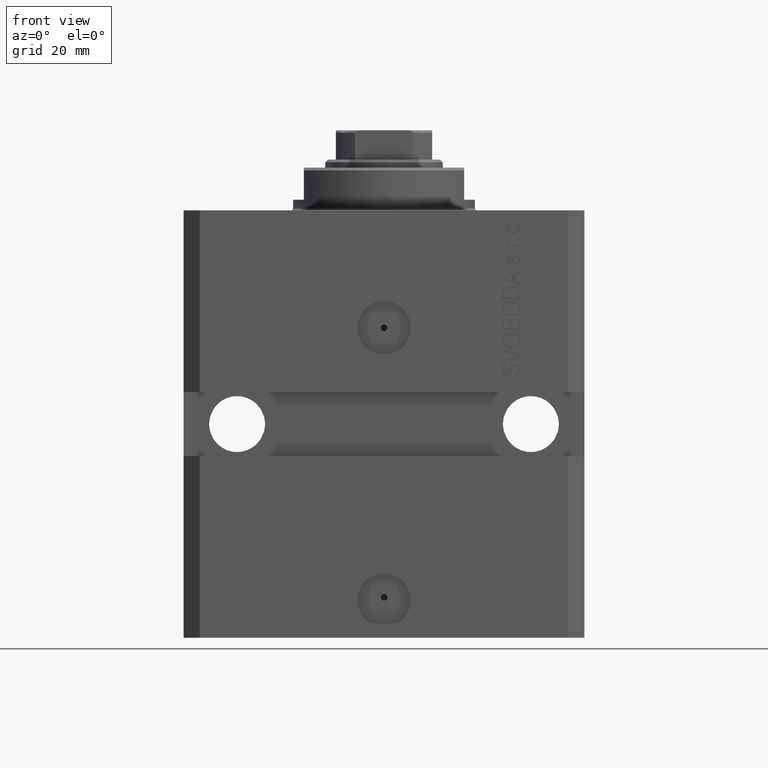
[diagram: clean part render]
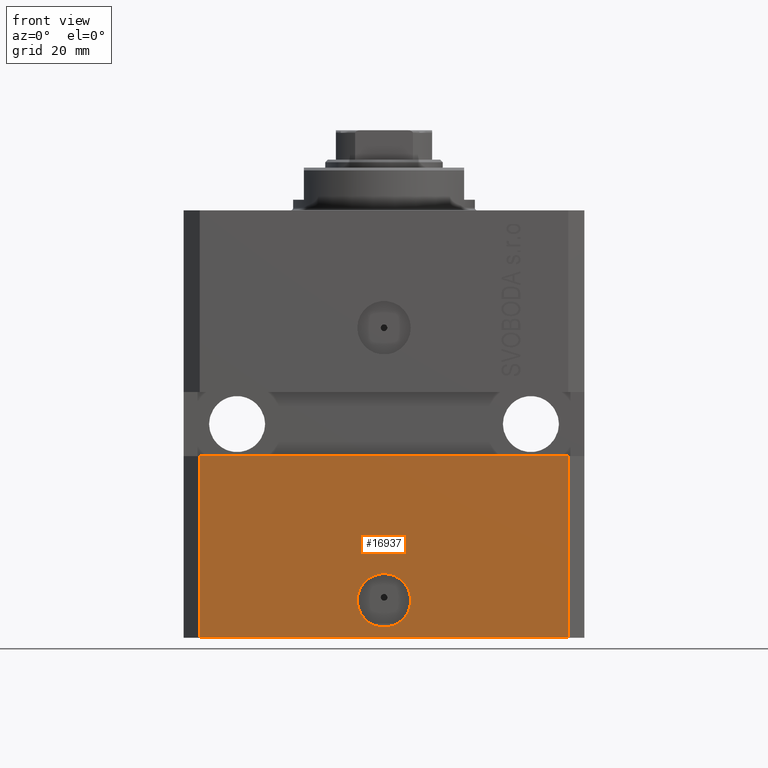
[diagram: same view with one face highlighted and labeled with its STEP entity id]
A machine part, front view. The second image highlights one B-rep face of the part: STEP entity #16937.
In plain terms, the highlighted planar face has unit normal (0, -1, 0).
Its self-contained STEP definition (entity closure, byte-faithful):
#79 = EDGE_LOOP ( 'NONE', ( #15912, #6974 ) ) ;
#1159 = EDGE_CURVE ( 'NONE', #17368, #6201, #27697, .T. ) ;
#4168 = FACE_BOUND ( 'NONE', #79, .T. ) ;
#4410 = LINE ( 'NONE', #14620, #7386 ) ;
#4620 = EDGE_CURVE ( 'NONE', #17368, #22999, #4410, .T. ) ;
#5554 = ORIENTED_EDGE ( 'NONE', *, *, #11652, .T. ) ;
#6201 = VERTEX_POINT ( 'NONE', #20678 ) ;
#6974 = ORIENTED_EDGE ( 'NONE', *, *, #9372, .F. ) ;
#7262 = CARTESIAN_POINT ( 'NONE',  ( 0.000000000000000000, -27.49999999999999645, -73.00000000000000000 ) ) ;
#7386 = VECTOR ( 'NONE', #7972, 1000.000000000000000 ) ;
#7695 = ORIENTED_EDGE ( 'NONE', *, *, #14025, .F. ) ;
#7972 = DIRECTION ( 'NONE',  ( 1.000000000000000000, 0.000000000000000000, 0.000000000000000000 ) ) ;
#8995 = LINE ( 'NONE', #23450, #39368 ) ;
#9372 = EDGE_CURVE ( 'NONE', #11654, #39069, #29505, .T. ) ;
#9801 = AXIS2_PLACEMENT_3D ( 'NONE', #42364, #16557, #35022 ) ;
#10390 = CARTESIAN_POINT ( 'NONE',  ( -34.49999999999998579, -27.49999999999999645, -80.00000000000000000 ) ) ;
#10570 = LINE ( 'NONE', #25030, #40053 ) ;
#11652 = EDGE_CURVE ( 'NONE', #22999, #30674, #10570, .T. ) ;
#11654 = VERTEX_POINT ( 'NONE', #14373 ) ;
#13054 = ORIENTED_EDGE ( 'NONE', *, *, #1159, .F. ) ;
#14025 = EDGE_CURVE ( 'NONE', #6201, #30674, #8995, .T. ) ;
#14194 = ORIENTED_EDGE ( 'NONE', *, *, #4620, .T. ) ;
#14373 = CARTESIAN_POINT ( 'NONE',  ( -5.000000000000006217, -27.49999999999999645, -73.00000000000000000 ) ) ;
#14620 = CARTESIAN_POINT ( 'NONE',  ( -34.49999999999998579, -27.49999999999999645, -80.00000000000000000 ) ) ;
#15321 = DIRECTION ( 'NONE',  ( 0.000000000000000000, -1.000000000000000000, 0.000000000000000000 ) ) ;
#15912 = ORIENTED_EDGE ( 'NONE', *, *, #39107, .F. ) ;
#16557 = DIRECTION ( 'NONE',  ( 1.176083712526788232E-16, -1.000000000000000000, 0.000000000000000000 ) ) ;
#16937 = ADVANCED_FACE ( 'NONE', ( #4168, #25981 ), #22184, .T. ) ;
#17285 = DIRECTION ( 'NONE',  ( 0.000000000000000000, 0.000000000000000000, 1.000000000000000000 ) ) ;
#17368 = VERTEX_POINT ( 'NONE', #37502 ) ;
#18611 = CARTESIAN_POINT ( 'NONE',  ( 34.49999999999999289, -27.49999999999999645, -80.00000000000000000 ) ) ;
#20678 = CARTESIAN_POINT ( 'NONE',  ( -34.49999999999998579, -27.50000000000000000, -46.00000000000000000 ) ) ;
#21802 = CARTESIAN_POINT ( 'NONE',  ( 34.49999999999999289, -27.49999999999999289, -46.00000000000000000 ) ) ;
#22184 = PLANE ( 'NONE',  #34151 ) ;
#22999 = VERTEX_POINT ( 'NONE', #18611 ) ;
#23450 = CARTESIAN_POINT ( 'NONE',  ( -37.50000000000000000, -27.50000000000000000, -46.00000000000000000 ) ) ;
#25030 = CARTESIAN_POINT ( 'NONE',  ( 34.49999999999999289, -27.49999999999999645, -80.00000000000000000 ) ) ;
#25038 = CARTESIAN_POINT ( 'NONE',  ( 5.000000000000006217, -27.49999999999999645, -73.00000000000000000 ) ) ;
#25981 = FACE_OUTER_BOUND ( 'NONE', #45095, .T. ) ;
#27466 = DIRECTION ( 'NONE',  ( 1.000000000000000000, 9.251858538542972814E-17, 0.000000000000000000 ) ) ;
#27697 = LINE ( 'NONE', #10390, #36029 ) ;
#27927 = CIRCLE ( 'NONE', #40795, 5.000000000000006217 ) ;
#29055 = DIRECTION ( 'NONE',  ( 1.176083712526788232E-16, -1.000000000000000000, 0.000000000000000000 ) ) ;
#29505 = CIRCLE ( 'NONE', #9801, 5.000000000000006217 ) ;
#30674 = VERTEX_POINT ( 'NONE', #21802 ) ;
#34151 = AXIS2_PLACEMENT_3D ( 'NONE', #43509, #15321, #44210 ) ;
#35022 = DIRECTION ( 'NONE',  ( 1.000000000000000000, 0.000000000000000000, 0.000000000000000000 ) ) ;
#36029 = VECTOR ( 'NONE', #17285, 1000.000000000000000 ) ;
#37502 = CARTESIAN_POINT ( 'NONE',  ( -34.49999999999998579, -27.49999999999999645, -80.00000000000000000 ) ) ;
#39069 = VERTEX_POINT ( 'NONE', #25038 ) ;
#39107 = EDGE_CURVE ( 'NONE', #39069, #11654, #27927, .T. ) ;
#39368 = VECTOR ( 'NONE', #27466, 1000.000000000000000 ) ;
#39478 = DIRECTION ( 'NONE',  ( 0.000000000000000000, 0.000000000000000000, 1.000000000000000000 ) ) ;
#40053 = VECTOR ( 'NONE', #39478, 1000.000000000000000 ) ;
#40795 = AXIS2_PLACEMENT_3D ( 'NONE', #7262, #29055, #46582 ) ;
#42364 = CARTESIAN_POINT ( 'NONE',  ( 0.000000000000000000, -27.49999999999999645, -73.00000000000000000 ) ) ;
#43509 = CARTESIAN_POINT ( 'NONE',  ( -34.49999999999998579, -27.49999999999999645, -80.00000000000000000 ) ) ;
#44210 = DIRECTION ( 'NONE',  ( 0.000000000000000000, -0.000000000000000000, -1.000000000000000000 ) ) ;
#45095 = EDGE_LOOP ( 'NONE', ( #7695, #13054, #14194, #5554 ) ) ;
#46582 = DIRECTION ( 'NONE',  ( 1.000000000000000000, 0.000000000000000000, 0.000000000000000000 ) ) ;